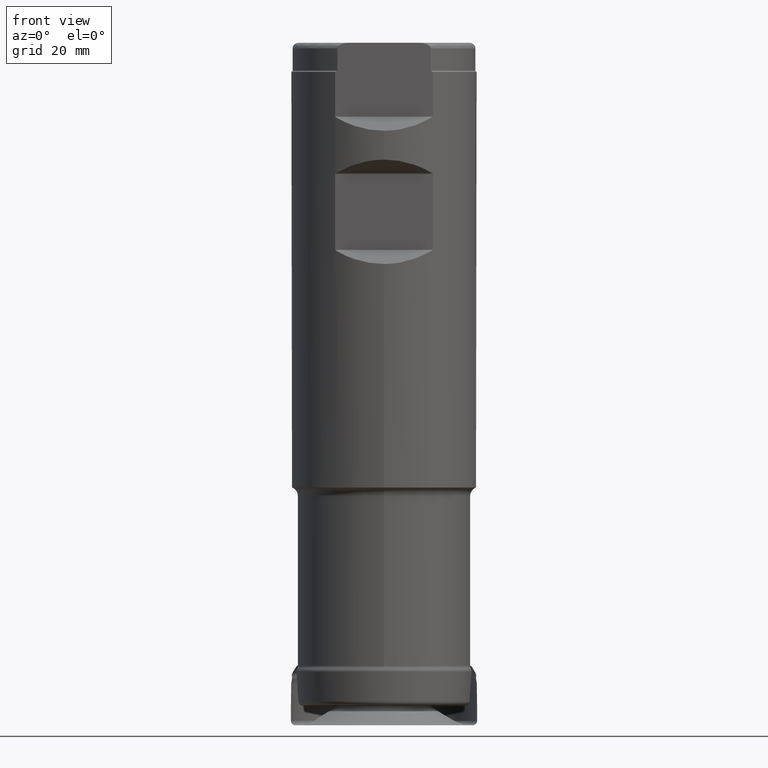
[diagram: clean part render]
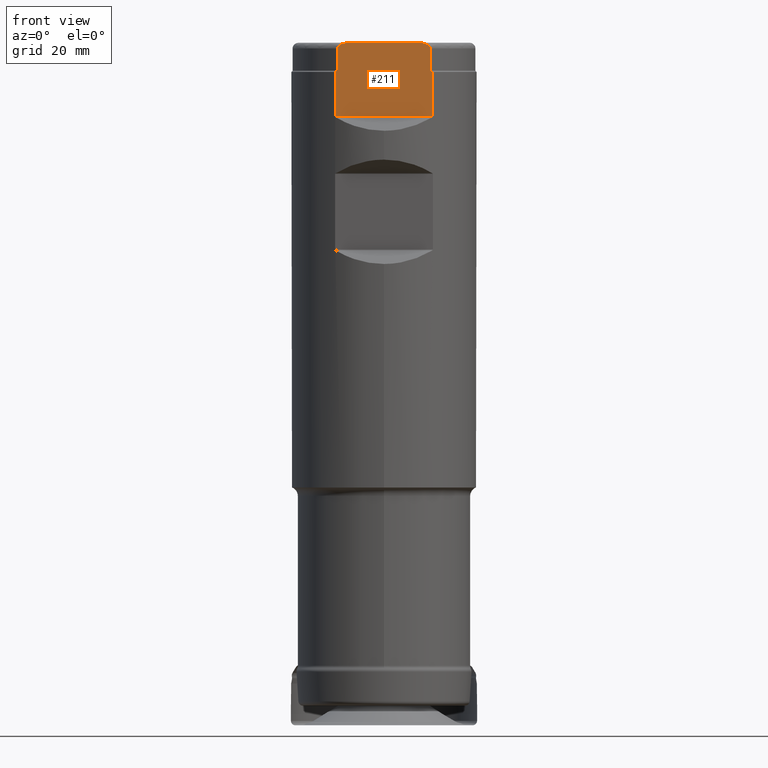
[diagram: same view with one face highlighted and labeled with its STEP entity id]
A machine part, front view. The second image highlights one B-rep face of the part: STEP entity #211.
In plain terms, the highlighted planar face has unit normal (0, -1, 0).
Its self-contained STEP definition (entity closure, byte-faithful):
#176=PLANE('',#886);
#184=FACE_OUTER_BOUND('',#421,.T.);
#211=ADVANCED_FACE('',(#184),#176,.T.);
#421=EDGE_LOOP('',(#568,#569,#570,#571,#572,#573,#574,#575,#576,#577));
#484=LINE('',#1430,#497);
#485=LINE('',#1434,#498);
#486=LINE('',#1455,#499);
#487=LINE('',#1459,#500);
#488=LINE('',#1466,#501);
#489=LINE('',#1535,#502);
#497=VECTOR('',#934,1.);
#498=VECTOR('',#937,1.);
#499=VECTOR('',#944,1.);
#500=VECTOR('',#947,1.);
#501=VECTOR('',#954,1.);
#502=VECTOR('',#1015,1.);
#568=ORIENTED_EDGE('',*,*,#755,.T.);
#569=ORIENTED_EDGE('',*,*,#728,.F.);
#570=ORIENTED_EDGE('',*,*,#738,.T.);
#571=ORIENTED_EDGE('',*,*,#732,.F.);
#572=ORIENTED_EDGE('',*,*,#741,.F.);
#573=ORIENTED_EDGE('',*,*,#737,.F.);
#574=ORIENTED_EDGE('',*,*,#740,.F.);
#575=ORIENTED_EDGE('',*,*,#734,.F.);
#576=ORIENTED_EDGE('',*,*,#739,.T.);
#577=ORIENTED_EDGE('',*,*,#726,.F.);
#662=VERTEX_POINT('',#1428);
#664=VERTEX_POINT('',#1431);
#665=VERTEX_POINT('',#1433);
#666=VERTEX_POINT('',#1435);
#668=VERTEX_POINT('',#1453);
#669=VERTEX_POINT('',#1454);
#670=VERTEX_POINT('',#1456);
#671=VERTEX_POINT('',#1458);
#673=VERTEX_POINT('',#1464);
#674=VERTEX_POINT('',#1465);
#726=EDGE_CURVE('',#662,#664,#484,.T.);
#728=EDGE_CURVE('',#665,#666,#485,.T.);
#732=EDGE_CURVE('',#669,#670,#486,.T.);
#734=EDGE_CURVE('',#671,#668,#487,.T.);
#737=EDGE_CURVE('',#674,#673,#488,.T.);
#738=EDGE_CURVE('',#665,#670,#817,.T.);
#739=EDGE_CURVE('',#671,#664,#818,.T.);
#740=EDGE_CURVE('',#668,#674,#819,.T.);
#741=EDGE_CURVE('',#673,#669,#820,.T.);
#755=EDGE_CURVE('',#662,#666,#489,.T.);
#817=B_SPLINE_CURVE_WITH_KNOTS('',3,(#1468,#1469,#1470,#1471),
 .UNSPECIFIED.,.F.,.F.,(4,4),(0.,1.),.UNSPECIFIED.);
#818=B_SPLINE_CURVE_WITH_KNOTS('',3,(#1472,#1473,#1474,#1475),
 .UNSPECIFIED.,.F.,.F.,(4,4),(0.,1.),.UNSPECIFIED.);
#819=B_SPLINE_CURVE_WITH_KNOTS('',3,(#1477,#1478,#1479,#1480,#1481,#1482,
#1483,#1484),.UNSPECIFIED.,.F.,.F.,(4,2,2,4),(0.,0.249999999999999,0.499999999999998,
1.),.UNSPECIFIED.);
#820=B_SPLINE_CURVE_WITH_KNOTS('',3,(#1485,#1486,#1487,#1488,#1489,#1490,
#1491,#1492),.UNSPECIFIED.,.F.,.F.,(4,2,2,4),(0.,0.500000000000003,0.750000000000002,
1.),.UNSPECIFIED.);
#886=AXIS2_PLACEMENT_3D('',#1536,#1016,#1017);
#934=DIRECTION('',(0.,1.17145536458252E-15,1.));
#937=DIRECTION('',(0.,-1.17145536458252E-15,-1.));
#944=DIRECTION('',(0.,-1.17145536458252E-15,-1.));
#947=DIRECTION('',(0.,1.17145536458252E-15,1.));
#954=DIRECTION('',(1.,-7.17309531289991E-32,-6.12323399573676E-17));
#1015=DIRECTION('',(1.,-7.17309531289991E-32,-6.12323399573676E-17));
#1016=DIRECTION('',(2.05927208001509E-49,-1.,1.17145536458252E-15));
#1017=DIRECTION('',(6.24500451351651E-17,1.17093834628434E-15,1.));
#1428=CARTESIAN_POINT('',(-8.37291264972949,-13.4873999999999,101.724264068712));
#1430=CARTESIAN_POINT('',(-8.37291264972949,-13.4874,1.57998870842703E-14));
#1431=CARTESIAN_POINT('',(-8.37291264972948,-13.4873999999999,109.3));
#1433=CARTESIAN_POINT('',(8.37291264972948,-13.4873999999999,109.3));
#1434=CARTESIAN_POINT('',(8.37291264972949,-13.4874,1.57998870842703E-14));
#1435=CARTESIAN_POINT('',(8.37291264972949,-13.4873999999999,101.724264068712));
#1453=CARTESIAN_POINT('',(-7.98721893028871,-13.4873999999999,113.299999999989));
#1454=CARTESIAN_POINT('',(7.98721893026603,-13.4873999999999,113.3));
#1455=CARTESIAN_POINT('',(7.98721893026603,-13.4874,1.57998870842703E-14));
#1456=CARTESIAN_POINT('',(7.98721893026603,-13.4873999999999,109.5));
#1458=CARTESIAN_POINT('',(-7.98721893026603,-13.4873999999999,109.5));
#1459=CARTESIAN_POINT('',(-7.98721893026603,-13.4874,1.57998870842703E-14));
#1464=CARTESIAN_POINT('',(5.78322282468844,-13.4873999999999,114.3));
#1465=CARTESIAN_POINT('',(-5.78322282468866,-13.4873999999999,114.3));
#1466=CARTESIAN_POINT('',(-17.5,-13.4873999999999,114.3));
#1468=CARTESIAN_POINT('',(8.37291264972949,-13.4873999999999,109.3));
#1469=CARTESIAN_POINT('',(8.24478103671274,-13.4873999999999,109.3675801451));
#1470=CARTESIAN_POINT('',(8.11622498021637,-13.4873999999999,109.434264780588));
#1471=CARTESIAN_POINT('',(7.98721893026604,-13.4873999999999,109.5));
#1472=CARTESIAN_POINT('',(-7.98721893026604,-13.4873999999999,109.5));
#1473=CARTESIAN_POINT('',(-8.11630235072831,-13.4873999999999,109.434225356332));
#1474=CARTESIAN_POINT('',(-8.24485631090742,-13.4873999999999,109.367540443414));
#1475=CARTESIAN_POINT('',(-8.37291264972949,-13.4873999999999,109.3));
#1477=CARTESIAN_POINT('',(-7.98721893026689,-13.4873999999999,113.299999999988));
#1478=CARTESIAN_POINT('',(-7.98721893027207,-13.4873999999999,113.520202770021));
#1479=CARTESIAN_POINT('',(-7.83736774434978,-13.4873999999999,113.715154682752));
#1480=CARTESIAN_POINT('',(-7.48623082979295,-13.4873999999999,113.980139720299));
#1481=CARTESIAN_POINT('',(-7.2817203242156,-13.4873999999999,114.067554950671));
#1482=CARTESIAN_POINT('',(-6.65729293981298,-13.4873999999999,114.2609297127));
#1483=CARTESIAN_POINT('',(-6.21637245039727,-13.4873999999999,114.3));
#1484=CARTESIAN_POINT('',(-5.78322282468866,-13.4873999999999,114.3));
#1485=CARTESIAN_POINT('',(5.78322282468844,-13.4873999999999,114.3));
#1486=CARTESIAN_POINT('',(6.21394869343176,-13.4873999999999,114.3));
#1487=CARTESIAN_POINT('',(6.65580566004196,-13.4873999999999,114.261664403719));
#1488=CARTESIAN_POINT('',(7.28486381477456,-13.4873999999999,114.06644362587));
#1489=CARTESIAN_POINT('',(7.48748729423047,-13.4873999999999,113.979507582041));
#1490=CARTESIAN_POINT('',(7.83842269980535,-13.4873999999999,113.714040424023));
#1491=CARTESIAN_POINT('',(7.98721893026603,-13.4873999999999,113.522383261353));
#1492=CARTESIAN_POINT('',(7.98721893026603,-13.4873999999999,113.3));
#1535=CARTESIAN_POINT('',(-17.5,-13.4873999999999,101.724264068712));
#1536=CARTESIAN_POINT('',(-17.5,-13.4873999999999,114.3));